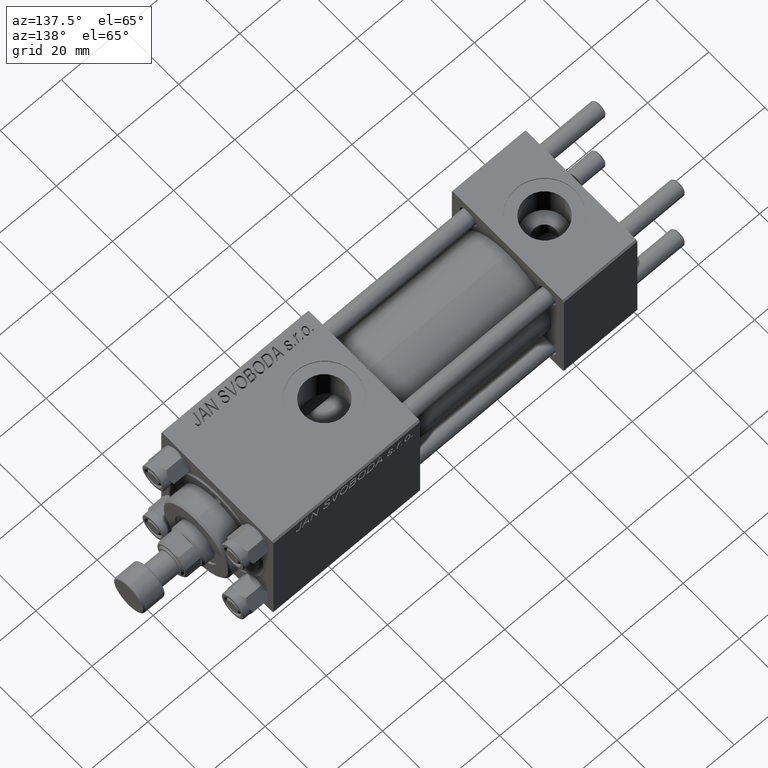
[diagram: clean part render]
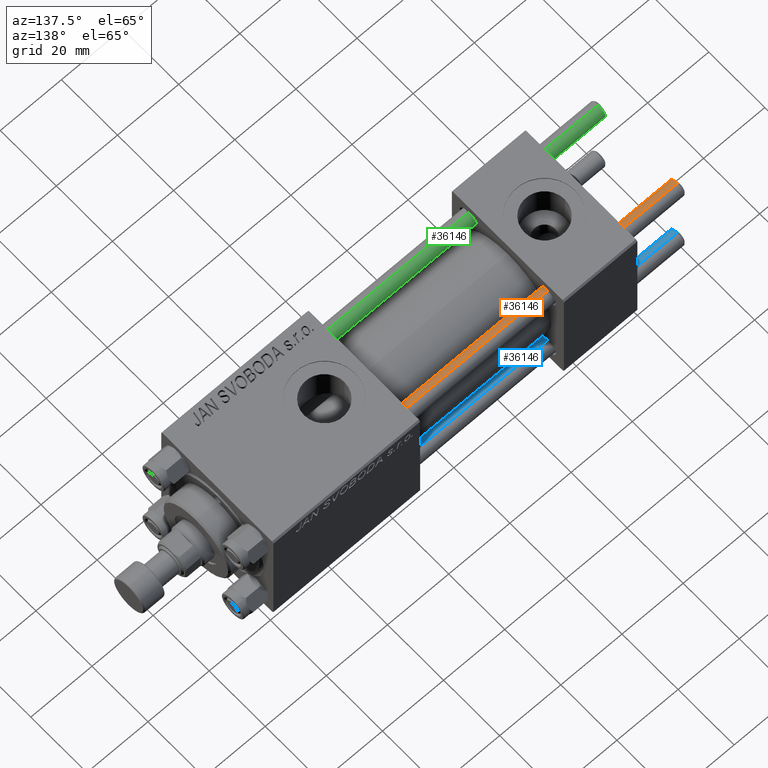
[diagram: same view with three faces highlighted in distinct colors, each labeled with its STEP entity id]
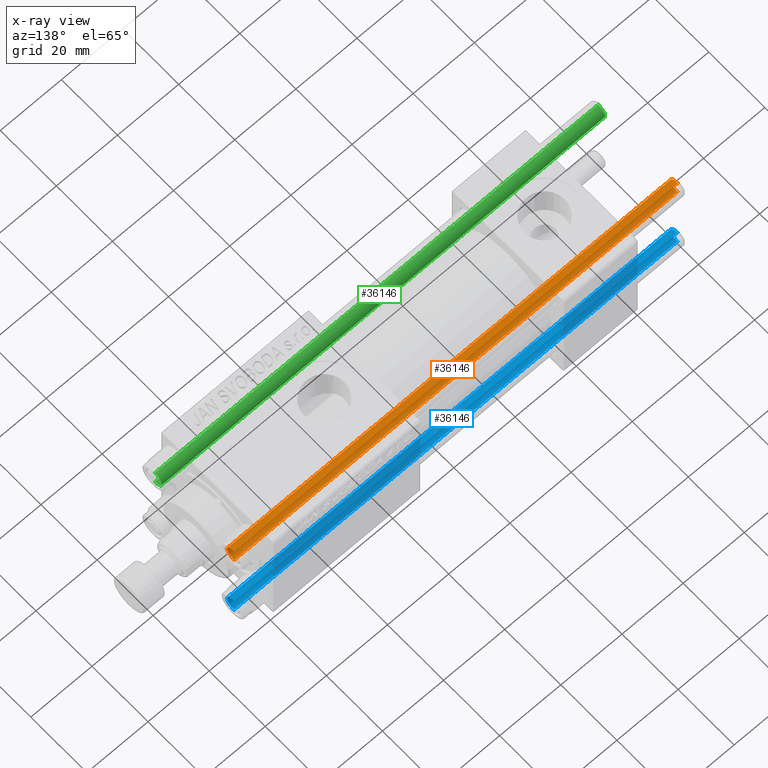
[diagram: x-ray of the same camera — body ghosted, the three highlighted faces saturated]
A machine part, auxiliary view with three faces highlighted in distinct colors.
The next image is the same camera in x-ray (body ghosted, the three faces saturated) — at least one of them is partly hidden behind the body in this view.
Their STEP definitions:

[orange] entity #36146 — the highlighted cylindrical surface (edge-blend (fillet) strip) has radius 2.5 mm, axis along (-1, -0, -0).
#2896 = VERTEX_POINT ( 'NONE', #19126 ) ;
#4355 = CARTESIAN_POINT ( 'NONE',  ( 2.500000000000000000, 3.061616997868383141E-16, 146.0000000000000000 ) ) ;
#4654 = VERTEX_POINT ( 'NONE', #26838 ) ;
#4994 = CARTESIAN_POINT ( 'NONE',  ( 0.000000000000000000, 0.000000000000000000, 146.0000000000000000 ) ) ;
#5924 = CARTESIAN_POINT ( 'NONE',  ( 0.000000000000000000, 0.000000000000000000, 145.5000000000000284 ) ) ;
#7056 = VERTEX_POINT ( 'NONE', #39530 ) ;
#7436 = DIRECTION ( 'NONE',  ( -0.000000000000000000, -0.000000000000000000, -1.000000000000000000 ) ) ;
#8870 = VECTOR ( 'NONE', #43456, 1000.000000000000000 ) ;
#9055 = CARTESIAN_POINT ( 'NONE',  ( -2.500000000000000000, 0.000000000000000000, 146.0000000000000000 ) ) ;
#9580 = DIRECTION ( 'NONE',  ( -1.000000000000000000, 0.000000000000000000, 0.000000000000000000 ) ) ;
#10078 = EDGE_CURVE ( 'NONE', #4654, #7056, #40370, .T. ) ;
#12736 = VERTEX_POINT ( 'NONE', #44816 ) ;
#14096 = DIRECTION ( 'NONE',  ( 0.000000000000000000, 0.000000000000000000, -1.000000000000000000 ) ) ;
#19057 = ORIENTED_EDGE ( 'NONE', *, *, #40558, .T. ) ;
#19126 = CARTESIAN_POINT ( 'NONE',  ( 2.500000000000000000, 3.061616997868383141E-16, 0.5000000000000559552 ) ) ;
#19925 = LINE ( 'NONE', #4355, #45691 ) ;
#20570 = DIRECTION ( 'NONE',  ( -0.000000000000000000, -0.000000000000000000, -1.000000000000000000 ) ) ;
#21623 = AXIS2_PLACEMENT_3D ( 'NONE', #26282, #42049, #34673 ) ;
#24643 = EDGE_CURVE ( 'NONE', #7056, #2896, #47652, .T. ) ;
#26282 = CARTESIAN_POINT ( 'NONE',  ( 0.000000000000000000, 0.000000000000000000, 0.5000000000000559552 ) ) ;
#26622 = ORIENTED_EDGE ( 'NONE', *, *, #46680, .F. ) ;
#26838 = CARTESIAN_POINT ( 'NONE',  ( -2.500000000000000000, 0.000000000000000000, 145.5000000000000284 ) ) ;
#28190 = FACE_OUTER_BOUND ( 'NONE', #32059, .T. ) ;
#30132 = CIRCLE ( 'NONE', #41529, 2.500000000000000000 ) ;
#31415 = ORIENTED_EDGE ( 'NONE', *, *, #24643, .T. ) ;
#32059 = EDGE_LOOP ( 'NONE', ( #26622, #19057, #39037, #31415 ) ) ;
#34673 = DIRECTION ( 'NONE',  ( 1.000000000000000000, 0.000000000000000000, 0.000000000000000000 ) ) ;
#36146 = ADVANCED_FACE ( 'NONE', ( #28190 ), #36333, .T. ) ;
#36333 = CYLINDRICAL_SURFACE ( 'NONE', #42210, 2.500000000000000000 ) ;
#39037 = ORIENTED_EDGE ( 'NONE', *, *, #10078, .T. ) ;
#39530 = CARTESIAN_POINT ( 'NONE',  ( -2.500000000000000000, 0.000000000000000000, 0.5000000000000559552 ) ) ;
#40370 = LINE ( 'NONE', #9055, #8870 ) ;
#40558 = EDGE_CURVE ( 'NONE', #12736, #4654, #30132, .T. ) ;
#40827 = DIRECTION ( 'NONE',  ( 1.000000000000000000, 0.000000000000000000, 0.000000000000000000 ) ) ;
#41529 = AXIS2_PLACEMENT_3D ( 'NONE', #5924, #14096, #40827 ) ;
#42049 = DIRECTION ( 'NONE',  ( -0.000000000000000000, -0.000000000000000000, 1.000000000000000000 ) ) ;
#42210 = AXIS2_PLACEMENT_3D ( 'NONE', #4994, #20570, #9580 ) ;
#43456 = DIRECTION ( 'NONE',  ( -0.000000000000000000, -0.000000000000000000, -1.000000000000000000 ) ) ;
#44816 = CARTESIAN_POINT ( 'NONE',  ( 2.500000000000000000, 3.061616997868383141E-16, 145.5000000000000284 ) ) ;
#45691 = VECTOR ( 'NONE', #7436, 1000.000000000000000 ) ;
#46680 = EDGE_CURVE ( 'NONE', #12736, #2896, #19925, .T. ) ;
#47652 = CIRCLE ( 'NONE', #21623, 2.500000000000000000 ) ;

[blue] entity #36146 — the highlighted cylindrical surface (edge-blend (fillet) strip) has radius 2.5 mm, axis along (1, 0, -0).
#2896 = VERTEX_POINT ( 'NONE', #19126 ) ;
#4355 = CARTESIAN_POINT ( 'NONE',  ( 2.500000000000000000, 3.061616997868383141E-16, 146.0000000000000000 ) ) ;
#4654 = VERTEX_POINT ( 'NONE', #26838 ) ;
#4994 = CARTESIAN_POINT ( 'NONE',  ( 0.000000000000000000, 0.000000000000000000, 146.0000000000000000 ) ) ;
#5924 = CARTESIAN_POINT ( 'NONE',  ( 0.000000000000000000, 0.000000000000000000, 145.5000000000000284 ) ) ;
#7056 = VERTEX_POINT ( 'NONE', #39530 ) ;
#7436 = DIRECTION ( 'NONE',  ( -0.000000000000000000, -0.000000000000000000, -1.000000000000000000 ) ) ;
#8870 = VECTOR ( 'NONE', #43456, 1000.000000000000000 ) ;
#9055 = CARTESIAN_POINT ( 'NONE',  ( -2.500000000000000000, 0.000000000000000000, 146.0000000000000000 ) ) ;
#9580 = DIRECTION ( 'NONE',  ( -1.000000000000000000, 0.000000000000000000, 0.000000000000000000 ) ) ;
#10078 = EDGE_CURVE ( 'NONE', #4654, #7056, #40370, .T. ) ;
#12736 = VERTEX_POINT ( 'NONE', #44816 ) ;
#14096 = DIRECTION ( 'NONE',  ( 0.000000000000000000, 0.000000000000000000, -1.000000000000000000 ) ) ;
#19057 = ORIENTED_EDGE ( 'NONE', *, *, #40558, .T. ) ;
#19126 = CARTESIAN_POINT ( 'NONE',  ( 2.500000000000000000, 3.061616997868383141E-16, 0.5000000000000559552 ) ) ;
#19925 = LINE ( 'NONE', #4355, #45691 ) ;
#20570 = DIRECTION ( 'NONE',  ( -0.000000000000000000, -0.000000000000000000, -1.000000000000000000 ) ) ;
#21623 = AXIS2_PLACEMENT_3D ( 'NONE', #26282, #42049, #34673 ) ;
#24643 = EDGE_CURVE ( 'NONE', #7056, #2896, #47652, .T. ) ;
#26282 = CARTESIAN_POINT ( 'NONE',  ( 0.000000000000000000, 0.000000000000000000, 0.5000000000000559552 ) ) ;
#26622 = ORIENTED_EDGE ( 'NONE', *, *, #46680, .F. ) ;
#26838 = CARTESIAN_POINT ( 'NONE',  ( -2.500000000000000000, 0.000000000000000000, 145.5000000000000284 ) ) ;
#28190 = FACE_OUTER_BOUND ( 'NONE', #32059, .T. ) ;
#30132 = CIRCLE ( 'NONE', #41529, 2.500000000000000000 ) ;
#31415 = ORIENTED_EDGE ( 'NONE', *, *, #24643, .T. ) ;
#32059 = EDGE_LOOP ( 'NONE', ( #26622, #19057, #39037, #31415 ) ) ;
#34673 = DIRECTION ( 'NONE',  ( 1.000000000000000000, 0.000000000000000000, 0.000000000000000000 ) ) ;
#36146 = ADVANCED_FACE ( 'NONE', ( #28190 ), #36333, .T. ) ;
#36333 = CYLINDRICAL_SURFACE ( 'NONE', #42210, 2.500000000000000000 ) ;
#39037 = ORIENTED_EDGE ( 'NONE', *, *, #10078, .T. ) ;
#39530 = CARTESIAN_POINT ( 'NONE',  ( -2.500000000000000000, 0.000000000000000000, 0.5000000000000559552 ) ) ;
#40370 = LINE ( 'NONE', #9055, #8870 ) ;
#40558 = EDGE_CURVE ( 'NONE', #12736, #4654, #30132, .T. ) ;
#40827 = DIRECTION ( 'NONE',  ( 1.000000000000000000, 0.000000000000000000, 0.000000000000000000 ) ) ;
#41529 = AXIS2_PLACEMENT_3D ( 'NONE', #5924, #14096, #40827 ) ;
#42049 = DIRECTION ( 'NONE',  ( -0.000000000000000000, -0.000000000000000000, 1.000000000000000000 ) ) ;
#42210 = AXIS2_PLACEMENT_3D ( 'NONE', #4994, #20570, #9580 ) ;
#43456 = DIRECTION ( 'NONE',  ( -0.000000000000000000, -0.000000000000000000, -1.000000000000000000 ) ) ;
#44816 = CARTESIAN_POINT ( 'NONE',  ( 2.500000000000000000, 3.061616997868383141E-16, 145.5000000000000284 ) ) ;
#45691 = VECTOR ( 'NONE', #7436, 1000.000000000000000 ) ;
#46680 = EDGE_CURVE ( 'NONE', #12736, #2896, #19925, .T. ) ;
#47652 = CIRCLE ( 'NONE', #21623, 2.500000000000000000 ) ;

[green] entity #36146 — the highlighted cylindrical surface (edge-blend (fillet) strip) has radius 2.5 mm, axis along (1, -0, 0).
#2896 = VERTEX_POINT ( 'NONE', #19126 ) ;
#4355 = CARTESIAN_POINT ( 'NONE',  ( 2.500000000000000000, 3.061616997868383141E-16, 146.0000000000000000 ) ) ;
#4654 = VERTEX_POINT ( 'NONE', #26838 ) ;
#4994 = CARTESIAN_POINT ( 'NONE',  ( 0.000000000000000000, 0.000000000000000000, 146.0000000000000000 ) ) ;
#5924 = CARTESIAN_POINT ( 'NONE',  ( 0.000000000000000000, 0.000000000000000000, 145.5000000000000284 ) ) ;
#7056 = VERTEX_POINT ( 'NONE', #39530 ) ;
#7436 = DIRECTION ( 'NONE',  ( -0.000000000000000000, -0.000000000000000000, -1.000000000000000000 ) ) ;
#8870 = VECTOR ( 'NONE', #43456, 1000.000000000000000 ) ;
#9055 = CARTESIAN_POINT ( 'NONE',  ( -2.500000000000000000, 0.000000000000000000, 146.0000000000000000 ) ) ;
#9580 = DIRECTION ( 'NONE',  ( -1.000000000000000000, 0.000000000000000000, 0.000000000000000000 ) ) ;
#10078 = EDGE_CURVE ( 'NONE', #4654, #7056, #40370, .T. ) ;
#12736 = VERTEX_POINT ( 'NONE', #44816 ) ;
#14096 = DIRECTION ( 'NONE',  ( 0.000000000000000000, 0.000000000000000000, -1.000000000000000000 ) ) ;
#19057 = ORIENTED_EDGE ( 'NONE', *, *, #40558, .T. ) ;
#19126 = CARTESIAN_POINT ( 'NONE',  ( 2.500000000000000000, 3.061616997868383141E-16, 0.5000000000000559552 ) ) ;
#19925 = LINE ( 'NONE', #4355, #45691 ) ;
#20570 = DIRECTION ( 'NONE',  ( -0.000000000000000000, -0.000000000000000000, -1.000000000000000000 ) ) ;
#21623 = AXIS2_PLACEMENT_3D ( 'NONE', #26282, #42049, #34673 ) ;
#24643 = EDGE_CURVE ( 'NONE', #7056, #2896, #47652, .T. ) ;
#26282 = CARTESIAN_POINT ( 'NONE',  ( 0.000000000000000000, 0.000000000000000000, 0.5000000000000559552 ) ) ;
#26622 = ORIENTED_EDGE ( 'NONE', *, *, #46680, .F. ) ;
#26838 = CARTESIAN_POINT ( 'NONE',  ( -2.500000000000000000, 0.000000000000000000, 145.5000000000000284 ) ) ;
#28190 = FACE_OUTER_BOUND ( 'NONE', #32059, .T. ) ;
#30132 = CIRCLE ( 'NONE', #41529, 2.500000000000000000 ) ;
#31415 = ORIENTED_EDGE ( 'NONE', *, *, #24643, .T. ) ;
#32059 = EDGE_LOOP ( 'NONE', ( #26622, #19057, #39037, #31415 ) ) ;
#34673 = DIRECTION ( 'NONE',  ( 1.000000000000000000, 0.000000000000000000, 0.000000000000000000 ) ) ;
#36146 = ADVANCED_FACE ( 'NONE', ( #28190 ), #36333, .T. ) ;
#36333 = CYLINDRICAL_SURFACE ( 'NONE', #42210, 2.500000000000000000 ) ;
#39037 = ORIENTED_EDGE ( 'NONE', *, *, #10078, .T. ) ;
#39530 = CARTESIAN_POINT ( 'NONE',  ( -2.500000000000000000, 0.000000000000000000, 0.5000000000000559552 ) ) ;
#40370 = LINE ( 'NONE', #9055, #8870 ) ;
#40558 = EDGE_CURVE ( 'NONE', #12736, #4654, #30132, .T. ) ;
#40827 = DIRECTION ( 'NONE',  ( 1.000000000000000000, 0.000000000000000000, 0.000000000000000000 ) ) ;
#41529 = AXIS2_PLACEMENT_3D ( 'NONE', #5924, #14096, #40827 ) ;
#42049 = DIRECTION ( 'NONE',  ( -0.000000000000000000, -0.000000000000000000, 1.000000000000000000 ) ) ;
#42210 = AXIS2_PLACEMENT_3D ( 'NONE', #4994, #20570, #9580 ) ;
#43456 = DIRECTION ( 'NONE',  ( -0.000000000000000000, -0.000000000000000000, -1.000000000000000000 ) ) ;
#44816 = CARTESIAN_POINT ( 'NONE',  ( 2.500000000000000000, 3.061616997868383141E-16, 145.5000000000000284 ) ) ;
#45691 = VECTOR ( 'NONE', #7436, 1000.000000000000000 ) ;
#46680 = EDGE_CURVE ( 'NONE', #12736, #2896, #19925, .T. ) ;
#47652 = CIRCLE ( 'NONE', #21623, 2.500000000000000000 ) ;